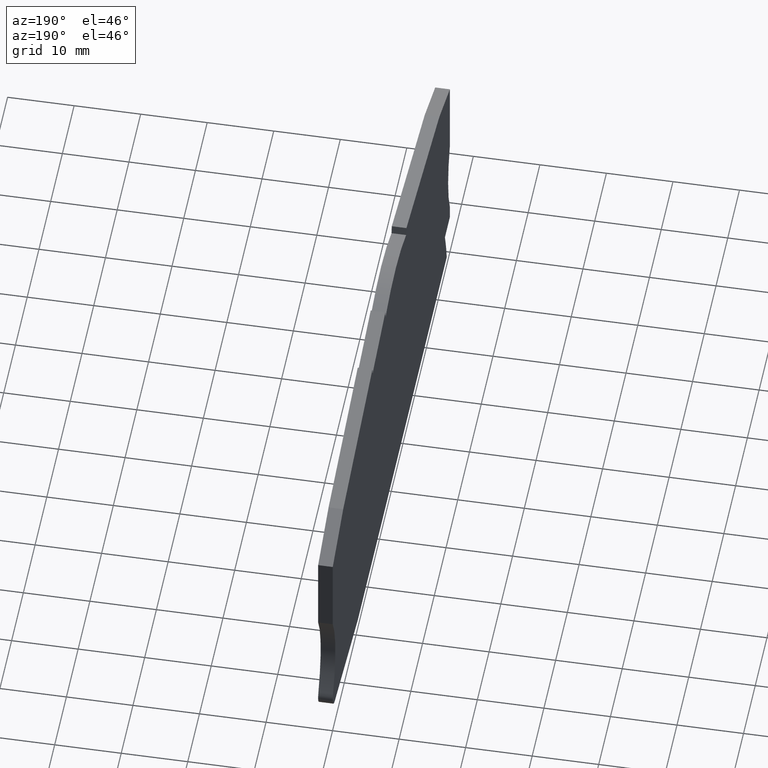
[diagram: clean part render]
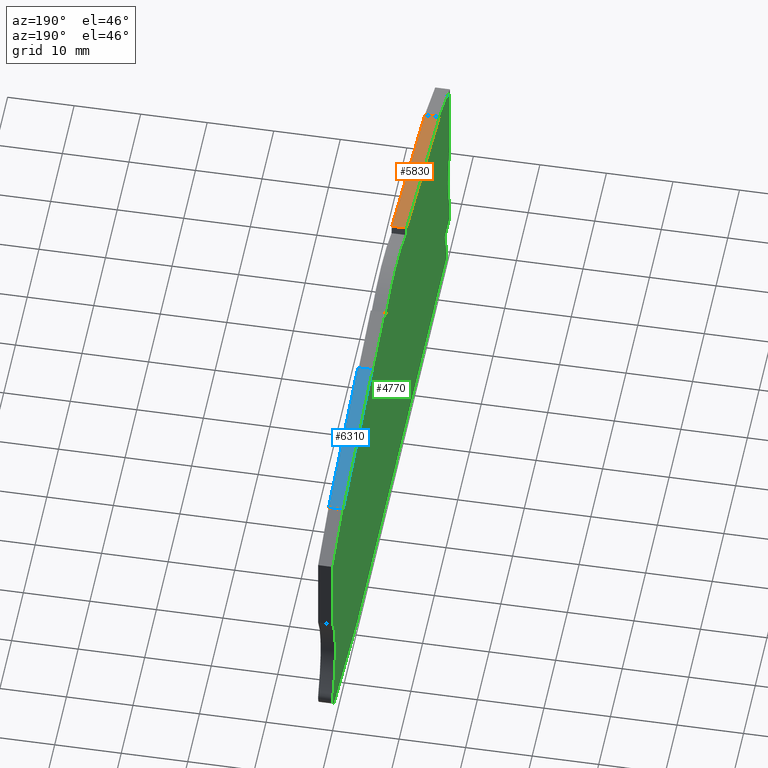
[diagram: same view with three faces highlighted in distinct colors, each labeled with its STEP entity id]
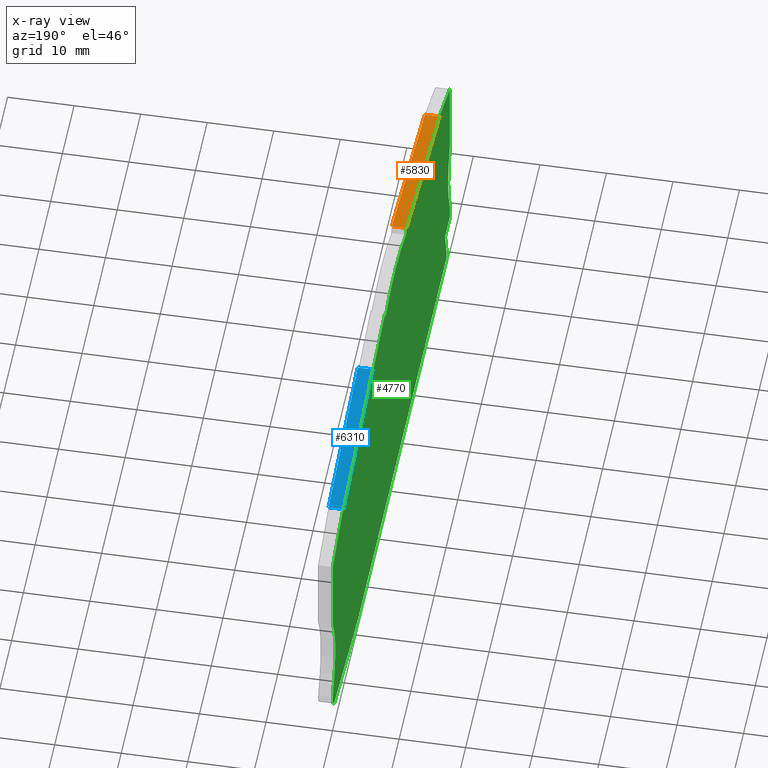
[diagram: x-ray of the same camera — body ghosted, the three highlighted faces saturated]
A machine part, auxiliary view with three faces highlighted in distinct colors.
The next image is the same camera in x-ray (body ghosted, the three faces saturated) — at least one of them is partly hidden behind the body in this view.
Their STEP definitions:

[orange] entity #5830 — the highlighted planar face has unit normal (0, 0.1736, -0.9848).
#1660=CARTESIAN_POINT('',(-7.08413715914052,-37.6457707346835,
125.750000000005));
#1670=VERTEX_POINT('',#1660);
#1700=CARTESIAN_POINT('',(51.6290292403111,-27.2930553756389,
125.750000000048));
#1710=DIRECTION('',(-0.984807753012221,-0.173648177666859,
-7.26076559621909E-13));
#1720=VECTOR('',#1710,1.);
#1730=LINE('',#1700,#1720);
#1740=CARTESIAN_POINT('',(21.0467726849628,-32.6855323372928,
125.750000000026));
#1750=VERTEX_POINT('',#1740);
#1760=EDGE_CURVE('',#1750,#1670,#1730,.T.);
#3820=CARTESIAN_POINT('',(21.0467726849641,-32.6855323372912,
123.550000000026));
#3830=VERTEX_POINT('',#3820);
#3860=CARTESIAN_POINT('',(51.6290292403125,-27.2930553756372,
123.550000000038));
#3870=DIRECTION('',(-0.984807753012221,-0.173648177666859,
-6.23256029753812E-13));
#3880=VECTOR('',#3870,1.);
#3890=LINE('',#3860,#3880);
#3900=CARTESIAN_POINT('',(-7.08413715913919,-37.6457707346819,
123.550000000005));
#3910=VERTEX_POINT('',#3900);
#3920=EDGE_CURVE('',#3830,#3910,#3890,.T.);
#5620=CARTESIAN_POINT('',(33.9152811925923,-30.4164670859195,
121.349997599921));
#5630=DIRECTION('',(0.173648177666859,-0.984807753012221,
-6.42754200857256E-13));
#5640=DIRECTION('',(-0.984807753012221,-0.173648177666859,
-7.26076559621909E-13));
#5650=AXIS2_PLACEMENT_3D('',#5620,#5630,#5640);
#5660=PLANE('',#5650);
#5670=ORIENTED_EDGE('',*,*,#1760,.F.);
#5680=CARTESIAN_POINT('',(-7.08413715913918,-37.6457707346819,
123.550000000005));
#5690=DIRECTION('',(6.03432729529515E-13,7.59071191710367E-13,-1.));
#5700=VECTOR('',#5690,1.);
#5710=LINE('',#5680,#5700);
#5720=EDGE_CURVE('',#1670,#3910,#5710,.T.);
#5730=ORIENTED_EDGE('',*,*,#5720,.F.);
#5740=ORIENTED_EDGE('',*,*,#3920,.T.);
#5750=CARTESIAN_POINT('',(21.0467726849641,-32.6855323372912,
123.550000000026));
#5760=DIRECTION('',(-6.03432729529515E-13,-7.59071191710367E-13,1.));
#5770=VECTOR('',#5760,1.);
#5780=LINE('',#5750,#5770);
#5790=EDGE_CURVE('',#3830,#1750,#5780,.T.);
#5800=ORIENTED_EDGE('',*,*,#5790,.F.);
#5810=EDGE_LOOP('',(#5800,#5740,#5730,#5670));
#5820=FACE_OUTER_BOUND('',#5810,.T.);
#5830=ADVANCED_FACE('',(#5820),#5660,.F.);

[blue] entity #6310 — the highlighted planar face has unit normal (0, -0.1736, -0.9848).
#670=CARTESIAN_POINT('',(50.0336555324318,-33.2585713671621,
125.750000000043));
#680=VERTEX_POINT('',#670);
#710=CARTESIAN_POINT('',(51.6290292403111,-33.539878796174,
125.750000000044));
#720=DIRECTION('',(-0.984807753012221,0.173648177666859,
-4.62453901302076E-13));
#730=VECTOR('',#720,1.);
#740=LINE('',#710,#730);
#750=CARTESIAN_POINT('',(74.9146995439338,-37.6457707345828,
125.750000000055));
#760=VERTEX_POINT('',#750);
#770=EDGE_CURVE('',#760,#680,#740,.T.);
#2920=CARTESIAN_POINT('',(50.0336555324331,-33.2585713671604,
123.550000000043));
#2930=DIRECTION('',(-6.03432729529515E-13,-7.59071191710367E-13,1.));
#2940=VECTOR('',#2930,1.);
#2950=LINE('',#2920,#2940);
#2960=CARTESIAN_POINT('',(50.0336555324331,-33.2585713671604,
123.550000000043));
#2970=VERTEX_POINT('',#2960);
#2980=EDGE_CURVE('',#2970,#680,#2950,.T.);
#4630=CARTESIAN_POINT('',(74.9146995439351,-37.6457707345811,
123.550000000055));
#4640=VERTEX_POINT('',#4630);
#4670=CARTESIAN_POINT('',(51.6290292403125,-33.5398787961723,
123.550000000037));
#4680=DIRECTION('',(-0.984807753012221,0.173648177666859,
-5.65274431170174E-13));
#4690=VECTOR('',#4680,1.);
#4700=LINE('',#4670,#4690);
#4710=EDGE_CURVE('',#4640,#2970,#4700,.T.);
#5140=CARTESIAN_POINT('',(74.9146995439351,-37.6457707345811,
123.550000000055));
#5150=DIRECTION('',(6.03432729529515E-13,7.59071191710367E-13,-1.));
#5160=VECTOR('',#5150,1.);
#5170=LINE('',#5140,#5160);
#5180=EDGE_CURVE('',#760,#4640,#5170,.T.);
#6200=CARTESIAN_POINT('',(74.871619787077,-37.6381746111228,
121.34999759994));
#6210=DIRECTION('',(-0.173648177666859,-0.984807753012221,
-8.52324188511935E-13));
#6220=DIRECTION('',(-0.984807753012221,0.173648177666859,
-4.62453901302076E-13));
#6230=AXIS2_PLACEMENT_3D('',#6200,#6210,#6220);
#6240=PLANE('',#6230);
#6250=ORIENTED_EDGE('',*,*,#4710,.T.);
#6260=ORIENTED_EDGE('',*,*,#5180,.T.);
#6270=ORIENTED_EDGE('',*,*,#770,.F.);
#6280=ORIENTED_EDGE('',*,*,#2980,.T.);
#6290=EDGE_LOOP('',(#6280,#6270,#6260,#6250));
#6300=FACE_OUTER_BOUND('',#6290,.T.);
#6310=ADVANCED_FACE('',(#6300),#6240,.F.);

[green] entity #4770 — the highlighted planar face has unit normal (-1, -0, -0).
#60=CARTESIAN_POINT('',(51.6290292403125,-73.928065328687,
123.55000000003));
#70=DIRECTION('',(-1.,1.39415841791773E-36,-6.03432729531352E-13));
#80=VECTOR('',#70,1.);
#90=LINE('',#60,#80);
#100=CARTESIAN_POINT('',(62.5276099618369,-73.928065328687,
123.55000000002));
#110=VERTEX_POINT('',#100);
#120=CARTESIAN_POINT('',(-13.3272534839312,-73.928065328687,
123.549999999974));
#130=VERTEX_POINT('',#120);
#140=EDGE_CURVE('',#110,#130,#90,.T.);
#2160=CARTESIAN_POINT('',(51.6290292403125,-34.5553054080857,
123.550000000043));
#2170=DIRECTION('',(0.984807753012213,-0.173648177666904,
4.62453901302037E-13));
#2180=VECTOR('',#2170,1.);
#2190=LINE('',#2160,#2180);
#2200=CARTESIAN_POINT('',(38.9938164126413,-32.327376479574,
123.550000000037));
#2210=VERTEX_POINT('',#2200);
#2220=CARTESIAN_POINT('',(49.8600073547613,-34.2433791201993,
123.550000000042));
#2230=VERTEX_POINT('',#2220);
#2240=EDGE_CURVE('',#2210,#2230,#2190,.T.);
#2580=CARTESIAN_POINT('',(-11.7674381113148,-68.1280653286783,
123.549999999979));
#2590=VERTEX_POINT('',#2580);
#2620=CARTESIAN_POINT('',(51.6290292403125,-68.1280653286823,
123.550000000017));
#2630=DIRECTION('',(1.,-6.41431352477815E-14,6.03432729529466E-13));
#2640=VECTOR('',#2630,1.);
#2650=LINE('',#2620,#2640);
#2660=CARTESIAN_POINT('',(-15.9847188194076,-68.128065328678,
123.549999999977));
#2670=VERTEX_POINT('',#2660);
#2680=EDGE_CURVE('',#2670,#2590,#2650,.T.);
#2960=CARTESIAN_POINT('',(50.0336555324331,-33.2585713671604,
123.550000000043));
#2970=VERTEX_POINT('',#2960);
#3020=CARTESIAN_POINT('',(42.8893596173497,-73.7758869043053,
123.550000000025));
#3030=DIRECTION('',(0.173648177667083,0.984807753012181,
2.69290567130139E-13));
#3040=VECTOR('',#3030,1.);
#3050=LINE('',#3020,#3040);
#3060=EDGE_CURVE('',#2230,#2970,#3050,.T.);
#3270=CARTESIAN_POINT('',(-15.9847188194299,-40.885317526652,
123.549999999997));
#3280=VERTEX_POINT('',#3270);
#3360=CARTESIAN_POINT('',(-15.9847188194672,-52.9280653284093,
123.549999999988));
#3370=VERTEX_POINT('',#3360);
#3400=CARTESIAN_POINT('',(-15.9847188195319,-73.7758869043053,
123.549999999989));
#3410=DIRECTION('',(-3.10232395328553E-12,-1.,-1.67037591384234E-13));
#3420=VECTOR('',#3410,1.);
#3430=LINE('',#3400,#3420);
#3440=EDGE_CURVE('',#3280,#3370,#3430,.T.);
#3560=CARTESIAN_POINT('',(41.0685574456481,-32.8394863216096,
123.550000000038));
#3570=DIRECTION('',(6.03432729529515E-13,7.59071191710367E-13,-1.));
#3580=DIRECTION('',(-1.,0.,-6.03432729529515E-13));
#3590=AXIS2_PLACEMENT_3D('',#3560,#3570,#3580);
#3600=PLANE('',#3590);
#3610=CARTESIAN_POINT('',(33.9535845752126,-73.7758869043053,
123.550000000002));
#3620=DIRECTION('',(0.120713020131186,0.992687446667282,
8.26362630365169E-13));
#3630=VECTOR('',#3620,1.);
#3640=LINE('',#3610,#3630);
#3650=CARTESIAN_POINT('',(38.8544495174031,-33.4734646748127,
123.550000000036));
#3660=VERTEX_POINT('',#3650);
#3670=EDGE_CURVE('',#3660,#2210,#3640,.T.);
#3680=ORIENTED_EDGE('',*,*,#3670,.T.);
#3690=CARTESIAN_POINT('',(30.6491082792681,-56.0272309936731,
123.55000000002));
#3700=DIRECTION('',(-1.61558713389263E-27,-7.40822371249996E-13,1.));
#3710=DIRECTION('',(1.,4.58048401121007E-25,2.12045811323408E-27));
#3720=AXIS2_PLACEMENT_3D('',#3690,#3700,#3710);
#3730=CIRCLE('',#3720,24.);
#3740=CARTESIAN_POINT('',(21.2674179262603,-33.9368736828398,
123.550000000025));
#3750=VERTEX_POINT('',#3740);
#3760=EDGE_CURVE('',#3660,#3750,#3730,.T.);
#3770=ORIENTED_EDGE('',*,*,#3760,.F.);
#3780=CARTESIAN_POINT('',(28.2921108420035,-73.7758869043053,
123.550000000016));
#3790=DIRECTION('',(0.173648177666871,-0.984807753012219,
-5.97205794753468E-14));
#3800=VECTOR('',#3790,1.);
#3810=LINE('',#3780,#3800);
#3820=CARTESIAN_POINT('',(21.0467726849641,-32.6855323372912,
123.550000000026));
#3830=VERTEX_POINT('',#3820);
#3840=EDGE_CURVE('',#3830,#3750,#3810,.T.);
#3850=ORIENTED_EDGE('',*,*,#3840,.T.);
#3860=CARTESIAN_POINT('',(51.6290292403125,-27.2930553756372,
123.550000000038));
#3870=DIRECTION('',(-0.984807753012221,-0.173648177666859,
-6.23256029753812E-13));
#3880=VECTOR('',#3870,1.);
#3890=LINE('',#3860,#3880);
#3900=CARTESIAN_POINT('',(-7.08413715913919,-37.6457707346819,
123.550000000005));
#3910=VERTEX_POINT('',#3900);
#3920=EDGE_CURVE('',#3830,#3910,#3890,.T.);
#3930=ORIENTED_EDGE('',*,*,#3920,.F.);
#3940=CARTESIAN_POINT('',(51.6290292403125,-16.2759258059694,
123.550000000039));
#3950=DIRECTION('',(-0.939692620786971,-0.34202014332275,
-6.24154241169547E-13));
#3960=VECTOR('',#3950,1.);
#3970=LINE('',#3940,#3960);
#3980=EDGE_CURVE('',#3910,#3280,#3970,.T.);
#3990=ORIENTED_EDGE('',*,*,#3980,.F.);
#4000=ORIENTED_EDGE('',*,*,#3440,.F.);
#4010=CARTESIAN_POINT('',(-29.5032246539757,-59.4280653285909,
123.549999999983));
#4020=DIRECTION('',(-6.03432729529515E-13,-7.59071191710367E-13,1.));
#4030=DIRECTION('',(1.,-3.108041601862E-12,6.03432729527156E-13));
#4040=AXIS2_PLACEMENT_3D('',#4010,#4020,#4030);
#4050=CIRCLE('',#4040,15.);
#4060=CARTESIAN_POINT('',(-15.9847188194008,-65.9280653286343,
123.549999999978));
#4070=VERTEX_POINT('',#4060);
#4080=EDGE_CURVE('',#4070,#3370,#4050,.T.);
#4090=ORIENTED_EDGE('',*,*,#4080,.T.);
#4100=CARTESIAN_POINT('',(-15.9847188194251,-73.7758869043053,
123.549999999989));
#4110=DIRECTION('',(-3.10598768926679E-12,-1.,-1.67037591384236E-13));
#4120=VECTOR('',#4110,1.);
#4130=LINE('',#4100,#4120);
#4140=EDGE_CURVE('',#4070,#2670,#4130,.T.);
#4150=ORIENTED_EDGE('',*,*,#4140,.F.);
#4160=ORIENTED_EDGE('',*,*,#2680,.F.);
#4170=CARTESIAN_POINT('',(18.3152811806635,-79.3280653286798,
123.549999999989));
#4180=DIRECTION('',(-6.03432729529515E-13,-7.59071191710367E-13,1.));
#4190=DIRECTION('',(1.,-4.27713420242861E-14,6.03432729529483E-13));
#4200=AXIS2_PLACEMENT_3D('',#4170,#4180,#4190);
#4210=CIRCLE('',#4200,32.1);
#4220=EDGE_CURVE('',#2590,#130,#4210,.T.);
#4230=ORIENTED_EDGE('',*,*,#4220,.F.);
#4240=ORIENTED_EDGE('',*,*,#140,.T.);
#4250=CARTESIAN_POINT('',(51.6290292403125,-75.4639656999333,
123.55000000003));
#4260=DIRECTION('',(-0.990215346845371,-0.139547722560786,
-6.20826657025874E-13));
#4270=VECTOR('',#4260,1.);
#4280=LINE('',#4250,#4270);
#4290=CARTESIAN_POINT('',(82.0943766377516,-71.1705866285132,
123.550000000033));
#4300=VERTEX_POINT('',#4290);
#4310=EDGE_CURVE('',#4300,#110,#4280,.T.);
#4320=ORIENTED_EDGE('',*,*,#4310,.T.);
#4330=CARTESIAN_POINT('',(81.8152811926301,-69.1901559348225,
123.550000000049));
#4340=DIRECTION('',(-6.03432729529515E-13,-7.59071191710367E-13,1.));
#4350=DIRECTION('',(1.,-1.86201136935918E-24,6.03432729529515E-13));
#4360=AXIS2_PLACEMENT_3D('',#4330,#4340,#4350);
#4370=CIRCLE('',#4360,2.);
#4380=CARTESIAN_POINT('',(83.5595744610605,-68.2116667965546,
123.550000000037));
#4390=VERTEX_POINT('',#4380);
#4400=EDGE_CURVE('',#4300,#4390,#4370,.T.);
#4410=ORIENTED_EDGE('',*,*,#4400,.F.);
#4420=CARTESIAN_POINT('',(96.6417739742867,-60.8729982595467,
123.55000000005));
#4430=DIRECTION('',(-6.03432729529515E-13,-7.59071191710367E-13,1.));
#4440=DIRECTION('',(1.,6.20886675406309E-12,6.03432729534228E-13));
#4450=AXIS2_PLACEMENT_3D('',#4420,#4430,#4440);
#4460=CIRCLE('',#4450,14.9999999999975);
#4470=CARTESIAN_POINT('',(83.8152812046,-53.096039777653,
123.550000000048));
#4480=VERTEX_POINT('',#4470);
#4490=EDGE_CURVE('',#4480,#4390,#4460,.T.);
#4500=ORIENTED_EDGE('',*,*,#4490,.T.);
#4510=CARTESIAN_POINT('',(83.8152812046641,-73.7758869043053,
123.550000000032));
#4520=DIRECTION('',(-3.1022961977106E-12,1.,7.59071191708495E-13));
#4530=VECTOR('',#4520,1.);
#4540=LINE('',#4510,#4530);
#4550=CARTESIAN_POINT('',(83.8152812045621,-40.8853175266737,
123.550000000057));
#4560=VERTEX_POINT('',#4550);
#4570=EDGE_CURVE('',#4480,#4560,#4540,.T.);
#4580=ORIENTED_EDGE('',*,*,#4570,.F.);
#4590=CARTESIAN_POINT('',(51.6290292403125,-29.170479859208,
123.550000000037));
#4600=DIRECTION('',(-0.939692620786971,0.34202014332275,
-5.09928324990903E-13));
#4610=VECTOR('',#4600,1.);
#4620=LINE('',#4590,#4610);
#4630=CARTESIAN_POINT('',(74.9146995439351,-37.6457707345811,
123.550000000055));
#4640=VERTEX_POINT('',#4630);
#4650=EDGE_CURVE('',#4560,#4640,#4620,.T.);
#4660=ORIENTED_EDGE('',*,*,#4650,.F.);
#4670=CARTESIAN_POINT('',(51.6290292403125,-33.5398787961723,
123.550000000037));
#4680=DIRECTION('',(-0.984807753012221,0.173648177666859,
-5.65274431170174E-13));
#4690=VECTOR('',#4680,1.);
#4700=LINE('',#4670,#4690);
#4710=EDGE_CURVE('',#4640,#2970,#4700,.T.);
#4720=ORIENTED_EDGE('',*,*,#4710,.F.);
#4730=ORIENTED_EDGE('',*,*,#3060,.T.);
#4740=ORIENTED_EDGE('',*,*,#2240,.T.);
#4750=EDGE_LOOP('',(#4740,#4730,#4720,#4660,#4580,#4500,#4410,#4320,
#4240,#4230,#4160,#4150,#4090,#4000,#3990,#3930,#3850,#3770,#3680));
#4760=FACE_OUTER_BOUND('',#4750,.T.);
#4770=ADVANCED_FACE('',(#4760),#3600,.T.);